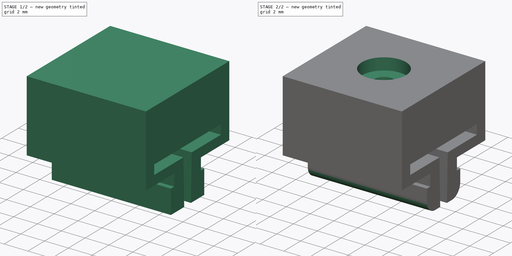
[diagram: build sequence overview — one tinted view per stage of 2, left to right]
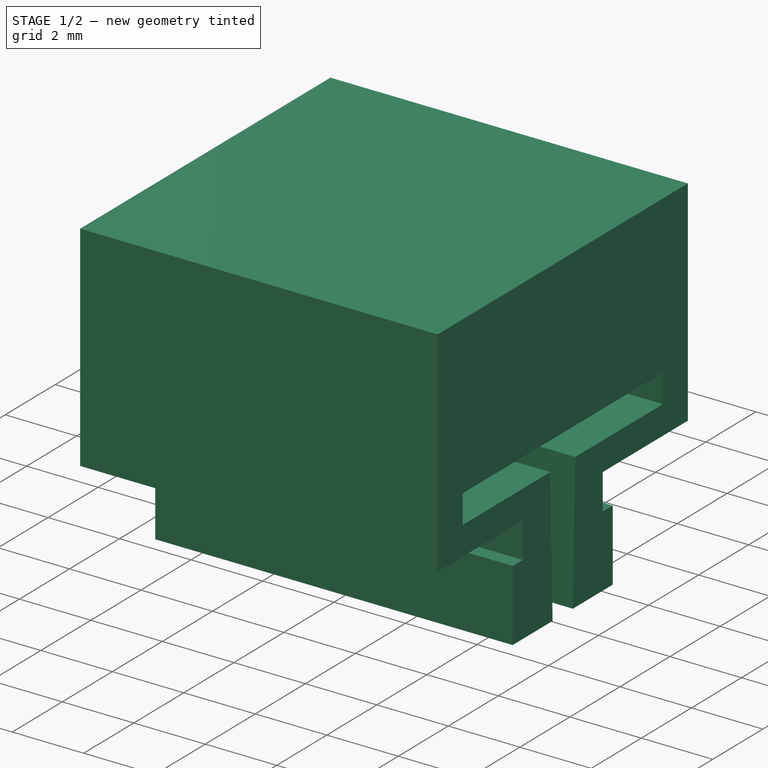
[diagram: stage 1 of 2 — iso view after this stage's code; geometry added in this stage tinted green]
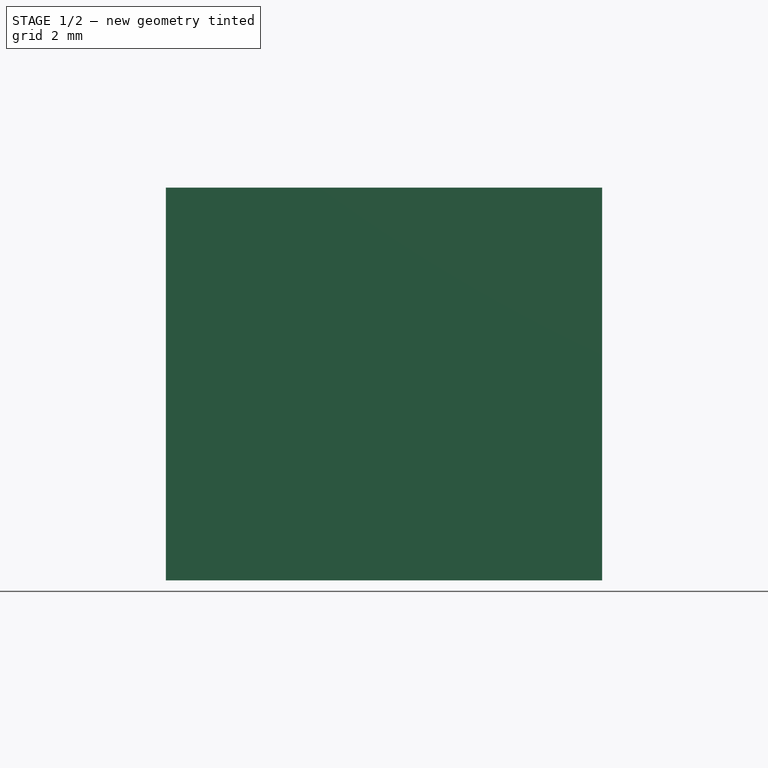
[diagram: stage 1 of 2 — front view after this stage's code; geometry added in this stage tinted green]
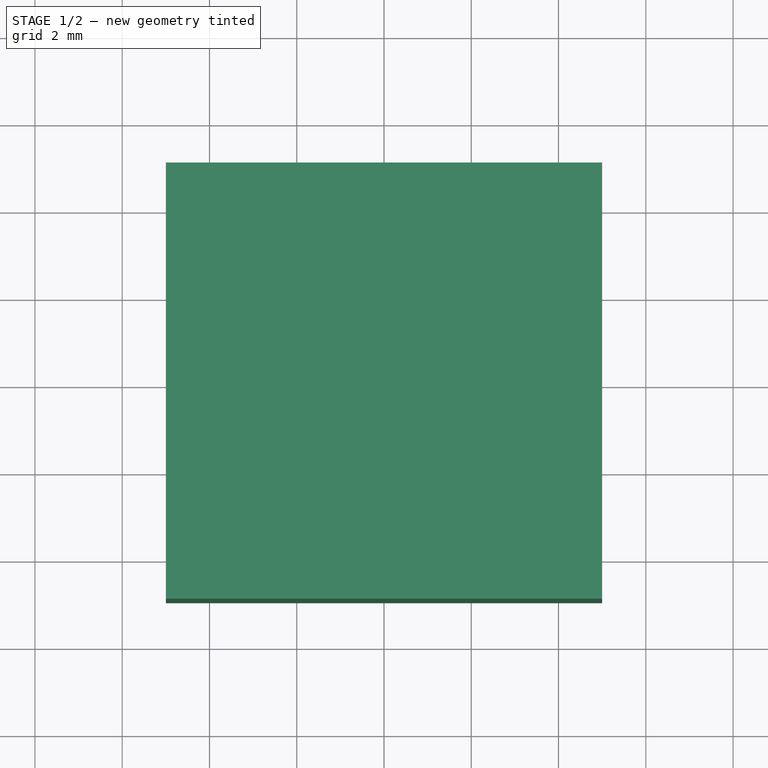
[diagram: stage 1 of 2 — top view after this stage's code; geometry added in this stage tinted green]
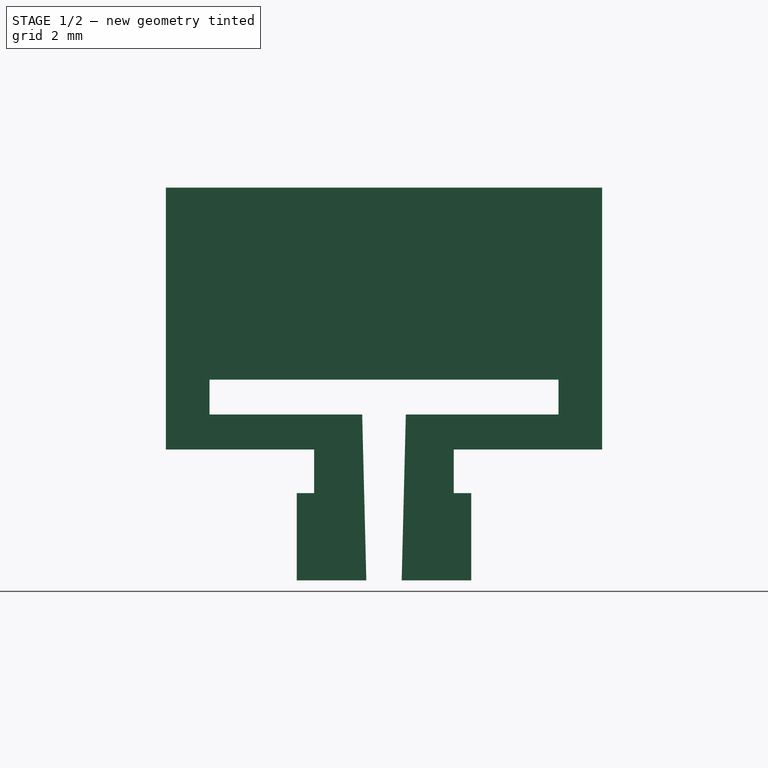
[diagram: stage 1 of 2 — right view after this stage's code; geometry added in this stage tinted green]
FCSTD DOCUMENT  (FreeCAD 0.19R)
Label: MakerBeamXL
License: All rights reserved
LicenseURL: http://en.wikipedia.org/wiki/All_rights_reserved
objects: Sketcher::SketchObject×3, PartDesign::Pad×1, PartDesign::Pocket×1, Part::Feature×1, PartDesign::Hole×1, PartDesign::Fillet×1, PartDesign::Body×1
note: 13 computed .brp shape members not serialized (recipe doc carries the construction recipe); baked Part::Feature solids carry a one-line shape summary decoded from their .brp

FEATURE [Sketcher::SketchObject] Sketch
  FullyConstrained = true
  MapMode = 5
  Placement = pos=(0,0,0) rot=(0.57735,0.57735,0.57735;2.0944rad)
  Support = -> [YZ_Plane]
  sketch-geometry (12):
    g0: LineSegment StartX=-5 StartY=7.5 StartZ=0 EndX=-5 EndY=13.5 EndZ=0
    g1: LineSegment StartX=-5 StartY=13.5 StartZ=0 EndX=5 EndY=13.5 EndZ=0
    g2: LineSegment StartX=5 StartY=13.5 StartZ=0 EndX=5 EndY=7.5 EndZ=0
    g3: LineSegment StartX=5 StartY=7.5 StartZ=0 EndX=1.6 EndY=7.5 EndZ=0
    g4: LineSegment StartX=-1.6 StartY=7.5 StartZ=0 EndX=-5 EndY=7.5 EndZ=0
    g5: LineSegment StartX=-1.6 StartY=7.5 StartZ=0 EndX=-1.6 EndY=6.5 EndZ=0
    g6: LineSegment StartX=-1.6 StartY=6.5 StartZ=0 EndX=-2 EndY=6.5 EndZ=0
    g7: LineSegment StartX=-2 StartY=6.5 StartZ=0 EndX=-2 EndY=4.5 EndZ=0
    g8: LineSegment StartX=-2 StartY=4.5 StartZ=0 EndX=2 EndY=4.5 EndZ=0
    g9: LineSegment StartX=2 StartY=4.5 StartZ=0 EndX=2 EndY=6.5 EndZ=0
    g10: LineSegment StartX=2 StartY=6.5 StartZ=0 EndX=1.6 EndY=6.5 EndZ=0
    g11: LineSegment StartX=1.6 StartY=6.5 StartZ=0 EndX=1.6 EndY=7.5 EndZ=0
  constraints (35):
    c: Coincident(g0,g1)
    c: Horizontal(g1)
    c: Coincident(g1,g2)
    c: Vertical(g2)
    c: Coincident(g2,g3)
    c: Horizontal(g3)
    c: Coincident(g4,g0)
    c: Horizontal(g4)
    c: Equal(g4,g3)
    c: Equal(g0,g2)
    c: DistanceY(g0,g0) = 6
    c: DistanceX(g1,g1) = 10
    c: DistanceX(g4,g3) = 3.2
    c: Vertical(g0)
    c: DistanceY(g-1,g2) = 7.5
    c: Coincident(g4,g5)
    c: Vertical(g5)
    c: Coincident(g5,g6)
    c: Horizontal(g6)
    c: Coincident(g6,g7)
    c: Vertical(g7)
    c: Coincident(g7,g8)
    c: Coincident(g8,g9)
    c: Vertical(g9)
    c: Coincident(g9,g10)
    c: Horizontal(g10)
    c: Coincident(g10,g11)
    c: Coincident(g11,g3)
    c: Vertical(g11)
    c: Equal(g6,g10)
    c: Equal(g5,g11)
    c: DistanceX(g6,g6) = 0.4
    c: Symmetric(g7,g8,g-2)
    c: DistanceY(g11,g11) = 1
    c: DistanceY(g7,g7) = 2
FEATURE [PartDesign::Pad] Pad  label="body"
  Direction = (1,1,1)
  Length = 10
  Length2 = 100
  Midplane = true
  Placement = pos=(0,0,0) rot=(0.57735,0.57735,0.57735;2.0944rad)
  Profile = -> Sketch
  Type = 0
FEATURE [Sketcher::SketchObject] Sketch001
  FullyConstrained = true
  MapMode = 5
  Placement = pos=(-3.8e-15,5.9e-15,13.5) rot=(0,0,-1;1.5708rad)
  Support = -> [Pad]
  sketch-geometry (1):
    g0: Circle CenterX=0 CenterY=0 CenterZ=0 NormalX=0 NormalY=0 NormalZ=1 AngleXU=0 Radius=1
  constraints (2):
    c: Radius(g0) = 1
    c: Coincident(g-1,g0)
FEATURE [Sketcher::SketchObject] Sketch002
  FullyConstrained = false
  MapMode = 5
  Placement = pos=(5,-3e-15,2e-15) rot=(0.57735,0.57735,0.57735;2.0944rad)
  sketch-geometry (8):
    g0: LineSegment StartX=0.5 StartY=8.3 StartZ=0 EndX=0.4 EndY=4.3 EndZ=0
    g1: LineSegment StartX=0.4 StartY=4.3 StartZ=0 EndX=-0.4 EndY=4.3 EndZ=0
    g2: LineSegment StartX=-0.4 StartY=4.3 StartZ=0 EndX=-0.5 EndY=8.3 EndZ=0
    g3: LineSegment StartX=-0.5 StartY=8.3 StartZ=0 EndX=-4 EndY=8.3 EndZ=0
    g4: LineSegment StartX=-4 StartY=8.3 StartZ=0 EndX=-4 EndY=9.1 EndZ=0
    g5: LineSegment StartX=-4 StartY=9.1 StartZ=0 EndX=4 EndY=9.1 EndZ=0
    g6: LineSegment StartX=4 StartY=9.1 StartZ=0 EndX=4 EndY=8.3 EndZ=0
    g7: LineSegment StartX=4 StartY=8.3 StartZ=0 EndX=0.5 EndY=8.3 EndZ=0
  constraints (22):
    c: DistanceY(g-1,g0) = 8.3
    c: Coincident(g2,g3)
    c: Horizontal(g3)
    c: Coincident(g3,g4)
    c: Vertical(g4)
    c: Coincident(g4,g5)
    c: Horizontal(g5)
    c: Coincident(g5,g6)
    c: Vertical(g6)
    c: Coincident(g6,g7)
    c: Coincident(g7,g0)
    c: Horizontal(g7)
    c: Equal(g3,g7)
    c: DistanceY(g4,g4) = 0.8
    c: DistanceX(g5,g5) = 8
    c: Equal(g2,g0)
    c: DistanceX(g1,g1) = 0.8
    c: Symmetric(g1,g0,g-2)
    c: Symmetric(g2,g0,g-2)
    c: DistanceX(g2,g0) = 1
    c: DistanceY(g1,g2) = 4
    c: Horizontal(g1)
FEATURE [PartDesign::Pocket] Pocket  label="tongue_gap"
  BaseFeature = -> Pad
  Length = 5
  Length2 = 100
  Placement = pos=(0,0,0) rot=(0.57735,0.57735,0.57735;2.0944rad)
  Profile = -> Sketch002
  Type = 1
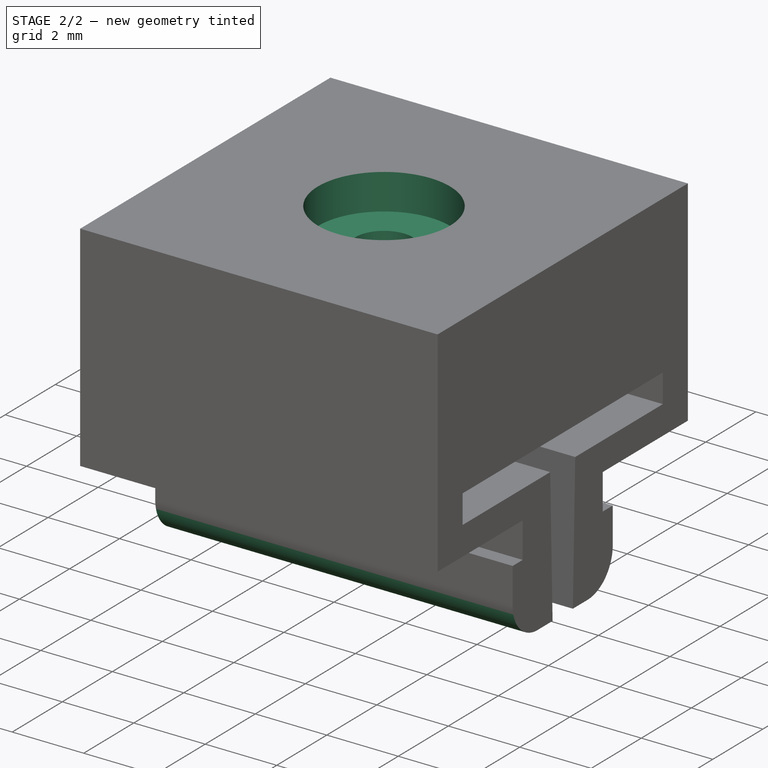
[diagram: stage 2 of 2 — iso view after this stage's code; geometry added in this stage tinted green]
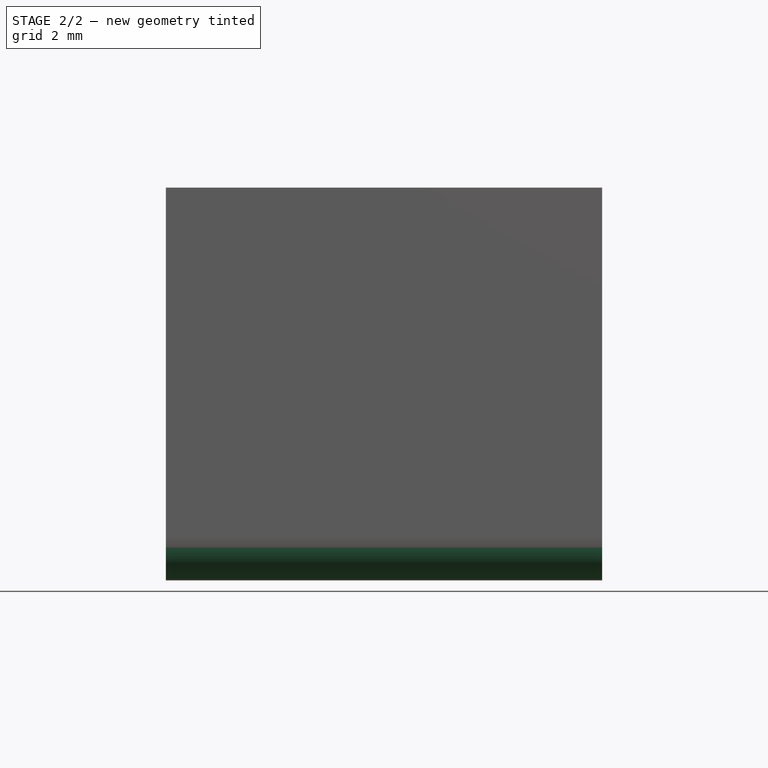
[diagram: stage 2 of 2 — front view after this stage's code; geometry added in this stage tinted green]
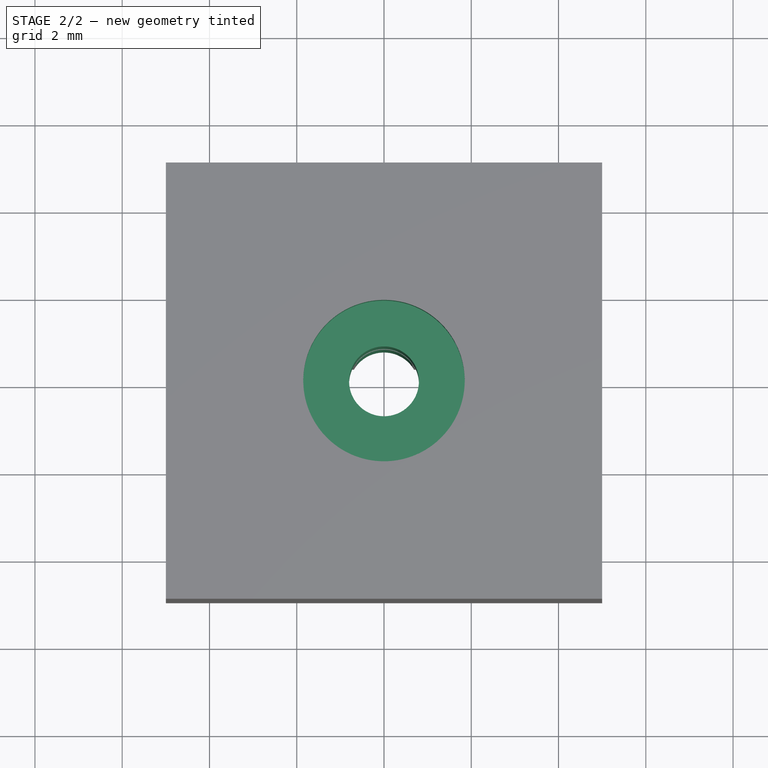
[diagram: stage 2 of 2 — top view after this stage's code; geometry added in this stage tinted green]
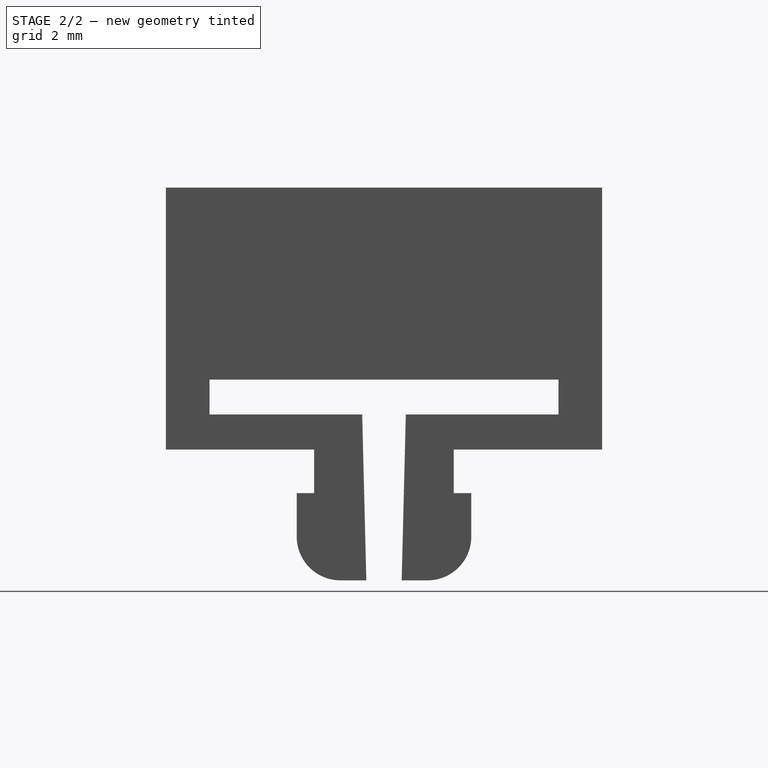
[diagram: stage 2 of 2 — right view after this stage's code; geometry added in this stage tinted green]
FEATURE [Part::Feature] Solid  label="profile"
  Placement = pos=(20,0,0) rot=(0,1,0;1.5708rad)
  shape: bbox 50 x 15 x 15 mm, 194 faces (baked)
FEATURE [PartDesign::Hole] Hole  label="drilling"
  BaseFeature = -> Pocket
  Depth = 5.5
  DepthType = 1
  Diameter = 1.6
  DrillForDepth = false
  DrillPoint = 1
  DrillPointAngle = 118
  HoleCutCountersinkAngle = 90
  HoleCutCustomValues = false
  HoleCutDepth = 1
  HoleCutDiameter = 3.7
  HoleCutType = 1
  ModelActualThread = false
  Placement = pos=(0,0,0) rot=(0.57735,0.57735,0.57735;2.0944rad)
  Profile = -> Sketch001
  Refine = true
  Tapered = false
  TaperedAngle = 90
  ThreadAngle = 60
  ThreadClass = 0
  ThreadCutOffInner = 0.0270633
  ThreadCutOffOuter = 0.0541266
  ThreadDirection = 0
  ThreadFit = 0
  ThreadPitch = 0.25
  ThreadSize = 3
  ThreadType = 1
  Threaded = false
FEATURE [PartDesign::Fillet] Fillet  label="tonque_rounding"
  Base = -> Hole [Edge51,Edge70]
  BaseFeature = -> Hole
  Placement = pos=(0,0,0) rot=(0.57735,0.57735,0.57735;2.0944rad)
  Radius = 1
  Refine = true
  SupportTransform = false
FEATURE [PartDesign::Body] Body
  Group = -> [Sketch,Pad,Pocket,Sketch002,Sketch001,Hole,Fillet]
  Origin = -> Origin
  Tip = -> Fillet
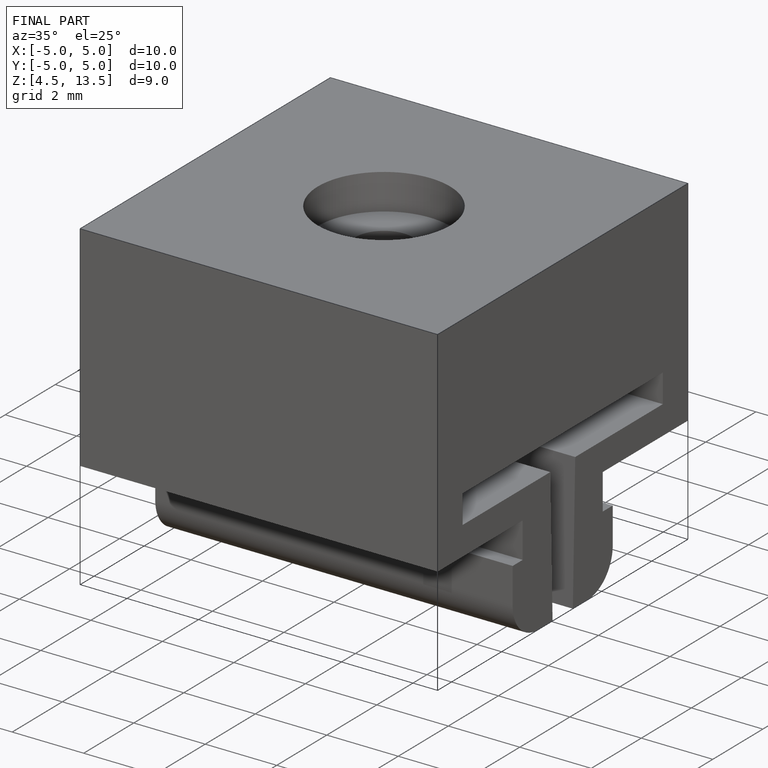
[diagram: finished part — iso view with bounding-box wireframe]
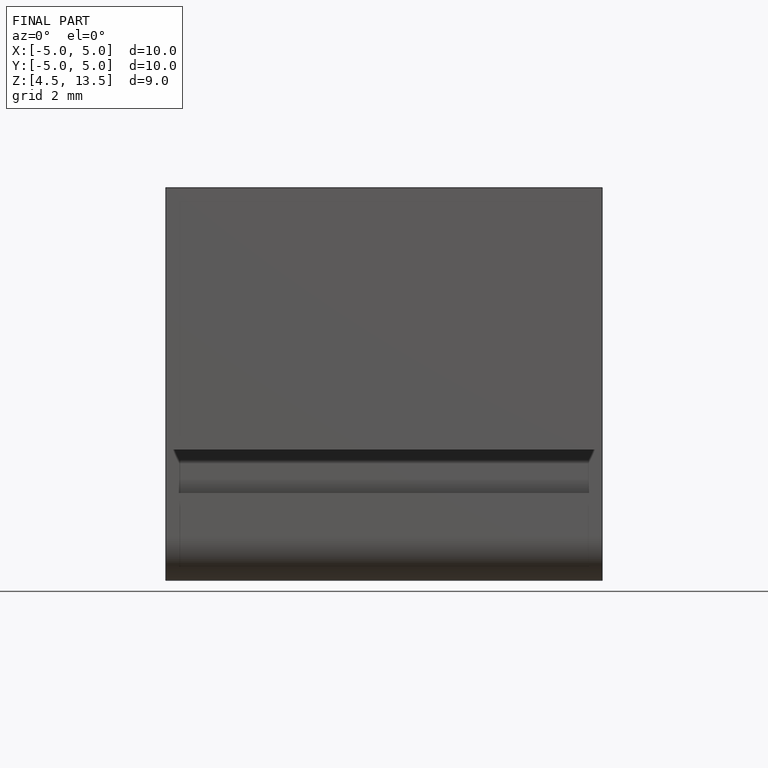
[diagram: finished part — front view with bounding-box wireframe]
